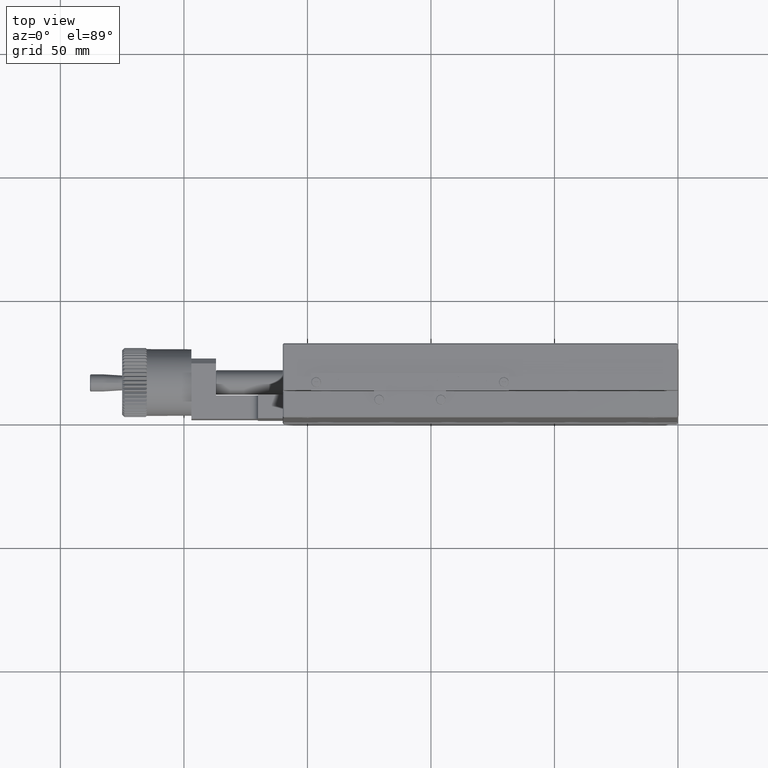
[diagram: clean part render]
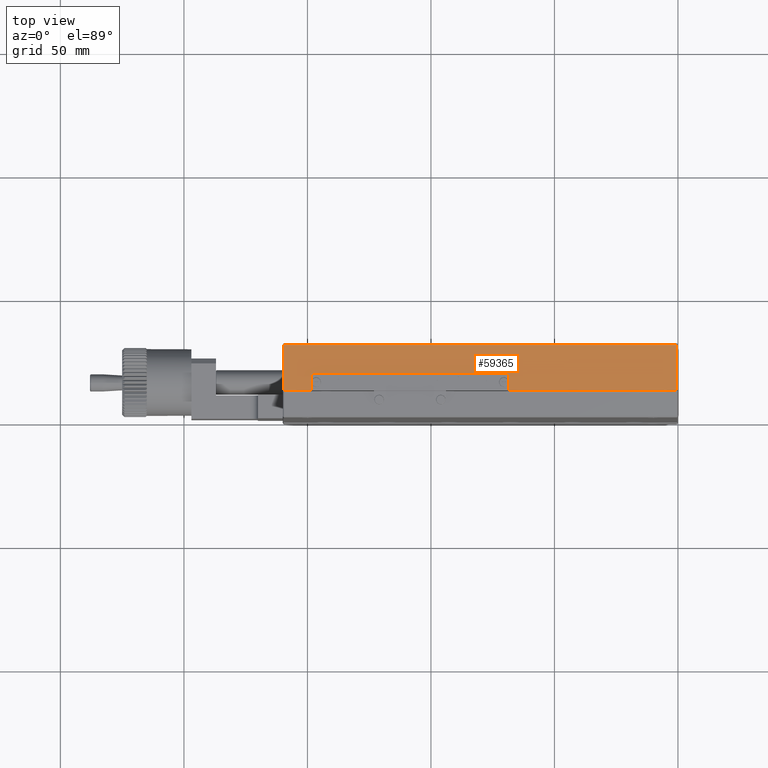
[diagram: same view with one face highlighted and labeled with its STEP entity id]
A machine part, top view. The second image highlights one B-rep face of the part: STEP entity #59365.
In plain terms, the highlighted planar face has unit normal (0, 0, 1).
Its self-contained STEP definition (entity closure, byte-faithful):
#670 = DIRECTION ( 'NONE',  ( 0.000000000000000000, -1.000000000000000000, -0.000000000000000000 ) ) ;
#1602 = VERTEX_POINT ( 'NONE', #51551 ) ;
#2405 = ORIENTED_EDGE ( 'NONE', *, *, #41397, .T. ) ;
#3096 = LINE ( 'NONE', #69108, #65200 ) ;
#5981 = PLANE ( 'NONE',  #38247 ) ;
#7271 = VECTOR ( 'NONE', #20419, 1000.000000000000000 ) ;
#9230 = VECTOR ( 'NONE', #62057, 1000.000000000000000 ) ;
#9853 = EDGE_CURVE ( 'NONE', #47084, #36042, #51848, .T. ) ;
#11219 = DIRECTION ( 'NONE',  ( -0.000000000000000000, 1.000000000000000000, 0.000000000000000000 ) ) ;
#11746 = ORIENTED_EDGE ( 'NONE', *, *, #53624, .T. ) ;
#11788 = VECTOR ( 'NONE', #11219, 1000.000000000000000 ) ;
#12960 = DIRECTION ( 'NONE',  ( 1.000000000000000000, 0.000000000000000000, -0.000000000000000000 ) ) ;
#12972 = VECTOR ( 'NONE', #670, 1000.000000000000000 ) ;
#14708 = CARTESIAN_POINT ( 'NONE',  ( -159.5000000000000000, 10.99999999999999467, 80.00000000000000000 ) ) ;
#15093 = ORIENTED_EDGE ( 'NONE', *, *, #62690, .T. ) ;
#15416 = CARTESIAN_POINT ( 'NONE',  ( -159.5000000000000000, 29.50000000000000000, 80.00000000000000000 ) ) ;
#16641 = CARTESIAN_POINT ( 'NONE',  ( -0.4999999999999899525, 29.50000000000000355, 80.00000000000000000 ) ) ;
#16661 = CARTESIAN_POINT ( 'NONE',  ( -68.50000000000000000, 17.80000000000000071, 80.00000000000000000 ) ) ;
#17200 = VERTEX_POINT ( 'NONE', #17551 ) ;
#17551 = CARTESIAN_POINT ( 'NONE',  ( -148.5000000000000000, 17.80000000000000071, 80.00000000000000000 ) ) ;
#18275 = VERTEX_POINT ( 'NONE', #50941 ) ;
#18531 = EDGE_LOOP ( 'NONE', ( #15093, #11746, #64620, #46810, #2405, #56431, #71895, #56098 ) ) ;
#19293 = EDGE_CURVE ( 'NONE', #54047, #1602, #61181, .T. ) ;
#20419 = DIRECTION ( 'NONE',  ( 1.000000000000000000, 0.000000000000000000, -0.000000000000000000 ) ) ;
#24096 = CARTESIAN_POINT ( 'NONE',  ( -160.0000000000000000, 29.50000000000000000, 80.00000000000000000 ) ) ;
#24333 = VECTOR ( 'NONE', #39284, 1000.000000000000000 ) ;
#28538 = FACE_OUTER_BOUND ( 'NONE', #18531, .T. ) ;
#30717 = VECTOR ( 'NONE', #61353, 1000.000000000000000 ) ;
#30829 = CARTESIAN_POINT ( 'NONE',  ( -148.5000000000000000, 30.00000000000000000, 80.00000000000000000 ) ) ;
#30840 = CARTESIAN_POINT ( 'NONE',  ( -148.5000000000000000, 11.00000000000000000, 80.00000000000000000 ) ) ;
#31730 = LINE ( 'NONE', #32066, #7271 ) ;
#32066 = CARTESIAN_POINT ( 'NONE',  ( -160.0000000000000000, 17.80000000000000071, 80.00000000000000000 ) ) ;
#34725 = LINE ( 'NONE', #40567, #30717 ) ;
#36042 = VERTEX_POINT ( 'NONE', #15416 ) ;
#38247 = AXIS2_PLACEMENT_3D ( 'NONE', #61778, #51202, #40244 ) ;
#38955 = LINE ( 'NONE', #61194, #11788 ) ;
#39284 = DIRECTION ( 'NONE',  ( 0.000000000000000000, -1.000000000000000000, -0.000000000000000000 ) ) ;
#40244 = DIRECTION ( 'NONE',  ( 1.000000000000000000, 0.000000000000000000, -0.000000000000000000 ) ) ;
#40567 = CARTESIAN_POINT ( 'NONE',  ( -160.0000000000000000, 11.00000000000000000, 80.00000000000000000 ) ) ;
#41091 = VECTOR ( 'NONE', #64751, 1000.000000000000000 ) ;
#41397 = EDGE_CURVE ( 'NONE', #18275, #47084, #38955, .T. ) ;
#41551 = EDGE_CURVE ( 'NONE', #36042, #42800, #50604, .T. ) ;
#42506 = LINE ( 'NONE', #30829, #41091 ) ;
#42800 = VERTEX_POINT ( 'NONE', #14708 ) ;
#46810 = ORIENTED_EDGE ( 'NONE', *, *, #62040, .T. ) ;
#47084 = VERTEX_POINT ( 'NONE', #16641 ) ;
#48884 = EDGE_CURVE ( 'NONE', #42800, #66026, #3096, .T. ) ;
#50604 = LINE ( 'NONE', #62656, #12972 ) ;
#50941 = CARTESIAN_POINT ( 'NONE',  ( -0.4999999999999998890, 11.00000000000000000, 80.00000000000000000 ) ) ;
#51202 = DIRECTION ( 'NONE',  ( 0.000000000000000000, 0.000000000000000000, 1.000000000000000000 ) ) ;
#51551 = CARTESIAN_POINT ( 'NONE',  ( -68.50000000000000000, 11.00000000000000000, 80.00000000000000000 ) ) ;
#51848 = LINE ( 'NONE', #24096, #9230 ) ;
#53624 = EDGE_CURVE ( 'NONE', #17200, #54047, #31730, .T. ) ;
#54047 = VERTEX_POINT ( 'NONE', #16661 ) ;
#56098 = ORIENTED_EDGE ( 'NONE', *, *, #48884, .T. ) ;
#56431 = ORIENTED_EDGE ( 'NONE', *, *, #9853, .T. ) ;
#59365 = ADVANCED_FACE ( 'NONE', ( #28538 ), #5981, .T. ) ;
#61181 = LINE ( 'NONE', #66296, #24333 ) ;
#61194 = CARTESIAN_POINT ( 'NONE',  ( -0.5000000000000004441, 30.00000000000000000, 80.00000000000000000 ) ) ;
#61353 = DIRECTION ( 'NONE',  ( 1.000000000000000000, 0.000000000000000000, -0.000000000000000000 ) ) ;
#61778 = CARTESIAN_POINT ( 'NONE',  ( -160.0000000000000000, 30.00000000000000000, 80.00000000000000000 ) ) ;
#62040 = EDGE_CURVE ( 'NONE', #1602, #18275, #34725, .T. ) ;
#62057 = DIRECTION ( 'NONE',  ( -1.000000000000000000, -0.000000000000000000, -0.000000000000000000 ) ) ;
#62656 = CARTESIAN_POINT ( 'NONE',  ( -159.5000000000000000, 30.00000000000000000, 80.00000000000000000 ) ) ;
#62690 = EDGE_CURVE ( 'NONE', #66026, #17200, #42506, .T. ) ;
#64620 = ORIENTED_EDGE ( 'NONE', *, *, #19293, .T. ) ;
#64751 = DIRECTION ( 'NONE',  ( -0.000000000000000000, 1.000000000000000000, 0.000000000000000000 ) ) ;
#65200 = VECTOR ( 'NONE', #12960, 1000.000000000000000 ) ;
#66026 = VERTEX_POINT ( 'NONE', #30840 ) ;
#66296 = CARTESIAN_POINT ( 'NONE',  ( -68.50000000000000000, 30.00000000000000000, 80.00000000000000000 ) ) ;
#69108 = CARTESIAN_POINT ( 'NONE',  ( -160.0000000000000000, 11.00000000000000000, 80.00000000000000000 ) ) ;
#71895 = ORIENTED_EDGE ( 'NONE', *, *, #41551, .T. ) ;